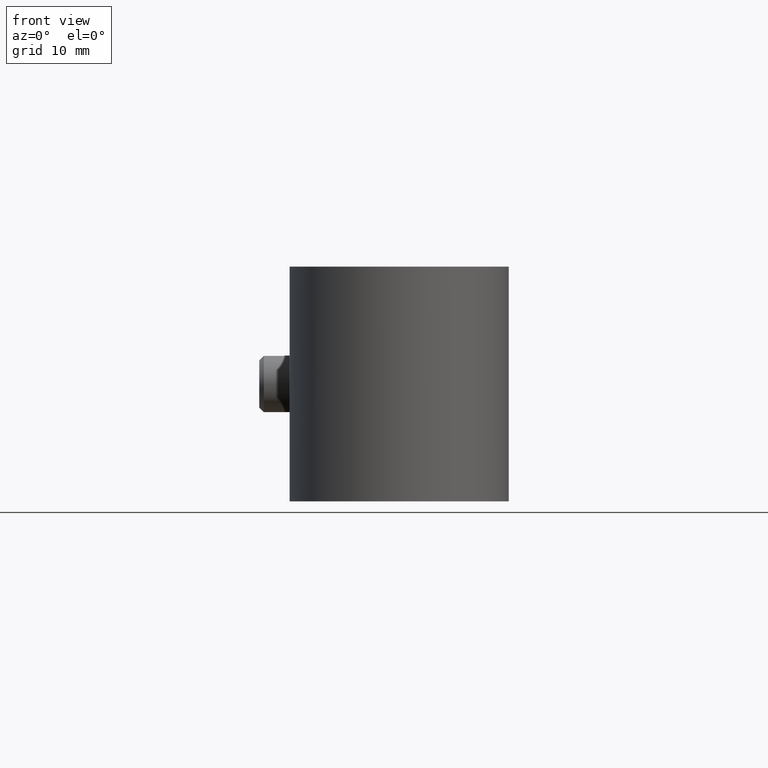
[diagram: clean part render]
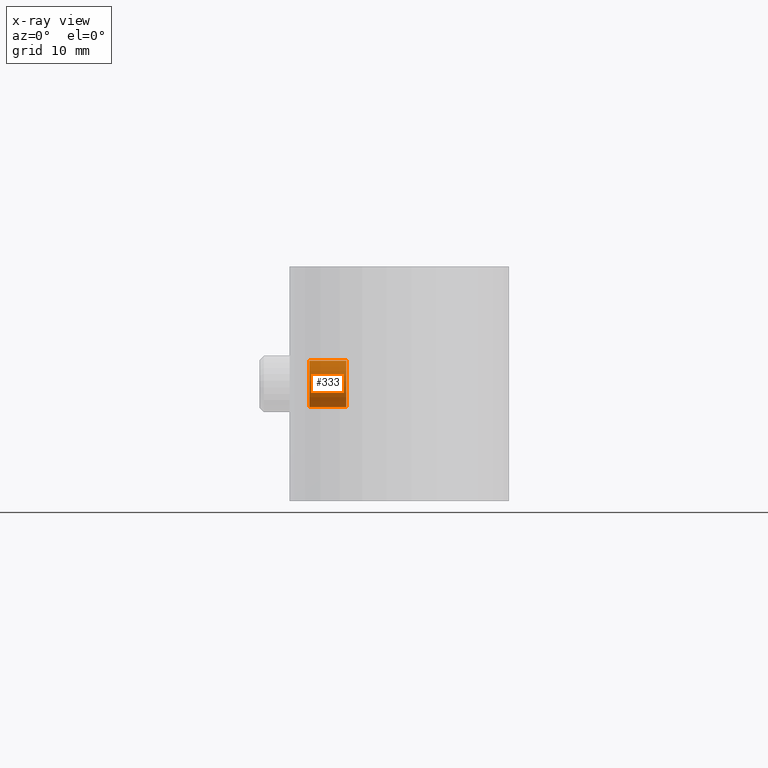
[diagram: x-ray — body ghosted, one internal face saturated and labeled with its STEP entity id]
A machine part, front view, then the same camera in x-ray: the body is ghosted and one INTERNAL B-rep face — a face not visible from any outside direction — is saturated and labeled: STEP entity #333.
In plain terms, the highlighted cylindrical surface (bore or boss wall) has radius 2.4585 mm, axis along (-1, 0, 0).
Its self-contained STEP definition (entity closure, byte-faithful):
#333 = ADVANCED_FACE( '', ( #520, #521 ), #522, .F. );
#520 = FACE_OUTER_BOUND( '', #752, .T. );
#521 = FACE_OUTER_BOUND( '', #753, .T. );
#522 = CYLINDRICAL_SURFACE( '', #754, 2.45850000000000 );
#752 = EDGE_LOOP( '', ( #1358 ) );
#753 = EDGE_LOOP( '', ( #1359 ) );
#754 = AXIS2_PLACEMENT_3D( '', #1360, #1361, #1362 );
#1358 = ORIENTED_EDGE( '', *, *, #1780, .T. );
#1359 = ORIENTED_EDGE( '', *, *, #1779, .F. );
#1360 = CARTESIAN_POINT( '', ( -5.10000000000002, 44.6578590263896, -8.67361737988408E-016 ) );
#1361 = DIRECTION( '', ( -1.00000000000000, 0.000000000000000, 0.000000000000000 ) );
#1362 = DIRECTION( '', ( 0.000000000000000, 0.000000000000000, -1.00000000000000 ) );
#1779 = EDGE_CURVE( '', #2128, #2128, #2129, .T. );
#1780 = EDGE_CURVE( '', #2130, #2130, #2131, .T. );
#2128 = VERTEX_POINT( '', #2752 );
#2129 = CIRCLE( '', #2753, 2.45850000000000 );
#2130 = VERTEX_POINT( '', #2754 );
#2131 = CIRCLE( '', #2755, 2.45850000000000 );
#2752 = CARTESIAN_POINT( '', ( -9.55850000000002, 44.6578590263896, -2.45850000000000 ) );
#2753 = AXIS2_PLACEMENT_3D( '', #3255, #3256, #3257 );
#2754 = CARTESIAN_POINT( '', ( -5.64150000000002, 44.6578590263896, -2.45850000000000 ) );
#2755 = AXIS2_PLACEMENT_3D( '', #3258, #3259, #3260 );
#3255 = CARTESIAN_POINT( '', ( -9.55850000000002, 44.6578590263896, -8.67361737988408E-016 ) );
#3256 = DIRECTION( '', ( 1.00000000000000, 0.000000000000000, 0.000000000000000 ) );
#3257 = DIRECTION( '', ( 0.000000000000000, 0.000000000000000, -1.00000000000000 ) );
#3258 = CARTESIAN_POINT( '', ( -5.64150000000002, 44.6578590263896, -8.67361737988408E-016 ) );
#3259 = DIRECTION( '', ( 1.00000000000000, 0.000000000000000, 0.000000000000000 ) );
#3260 = DIRECTION( '', ( 0.000000000000000, 0.000000000000000, -1.00000000000000 ) );